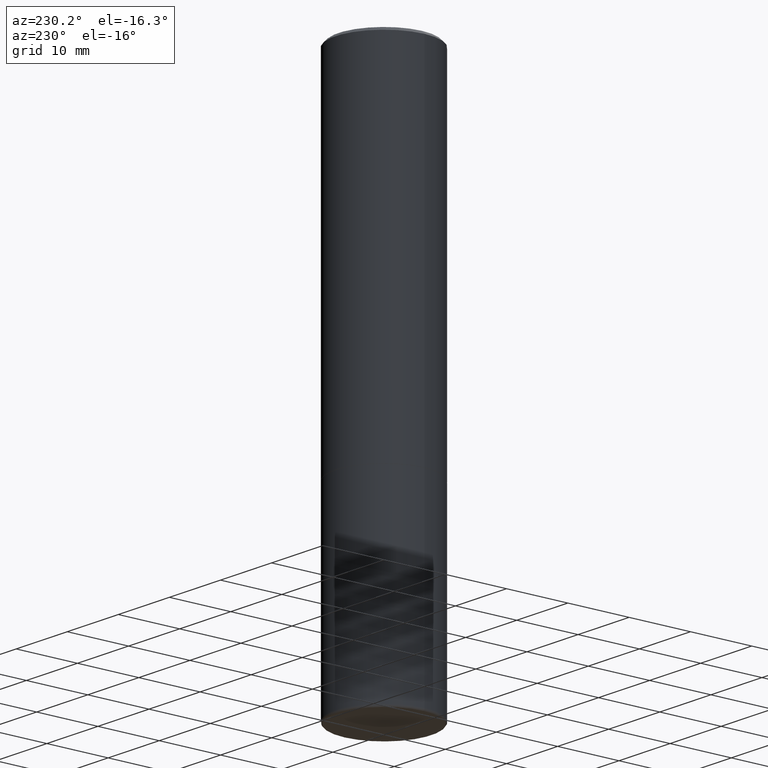
[diagram: clean part render]
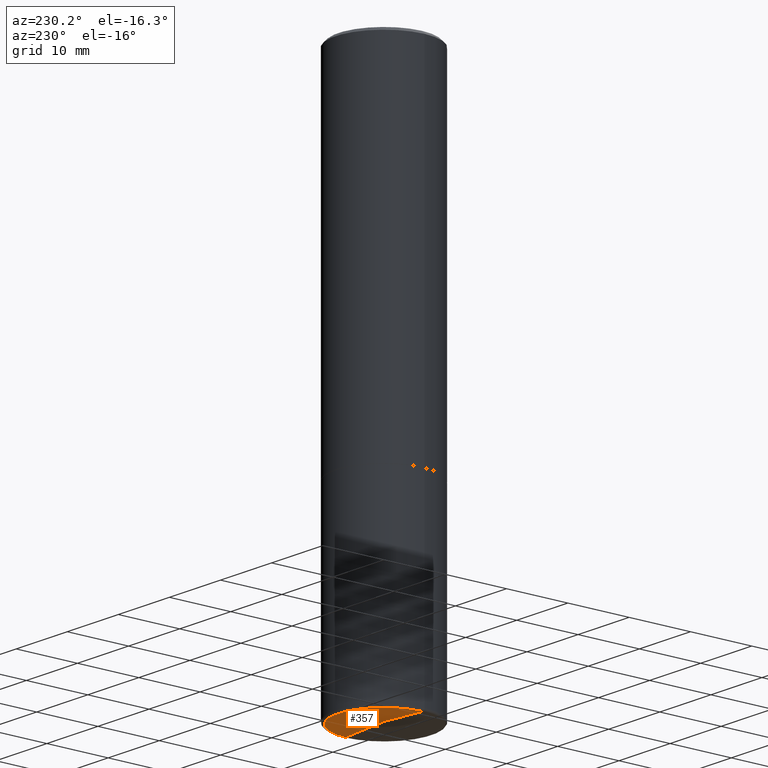
[diagram: same view with one face highlighted and labeled with its STEP entity id]
A machine part, auxiliary view. The second image highlights one B-rep face of the part: STEP entity #357.
In plain terms, the highlighted conical surface has half-angle 87 deg.
Its self-contained STEP definition (entity closure, byte-faithful):
#14 = AXIS2_PLACEMENT_3D ( 'NONE', #185, #331, #193 ) ;
#65 = CIRCLE ( 'NONE', #14, 0.2967149606563558861 ) ;
#85 = EDGE_LOOP ( 'NONE', ( #358, #323, #295 ) ) ;
#102 = EDGE_CURVE ( 'NONE', #210, #218, #223, .T. ) ;
#113 = AXIS2_PLACEMENT_3D ( 'NONE', #257, #377, #379 ) ;
#149 = CARTESIAN_POINT ( 'NONE',  ( 8.518465690765155971E-29, -1.216968316402480975E-14, -3.484449827831947566 ) ) ;
#173 = EDGE_CURVE ( 'NONE', #419, #218, #65, .T. ) ;
#179 = LINE ( 'NONE', #220, #180 ) ;
#180 = VECTOR ( 'NONE', #365, 39.37007874015748854 ) ;
#182 = CARTESIAN_POINT ( 'NONE',  ( -0.2967149606563558861, -1.002966813900966153E-14, -3.500000000000000000 ) ) ;
#184 = DIRECTION ( 'NONE',  ( -0.9986295347545742773, 6.790662755453670044E-15, -0.05233595624293597981 ) ) ;
#185 = CARTESIAN_POINT ( 'NONE',  ( 8.559140821647976968E-29, -1.222018468595100934E-14, -3.500000000000000000 ) ) ;
#193 = DIRECTION ( 'NONE',  ( 1.000000000000000000, -6.982962677686265922E-15, 0.000000000000000000 ) ) ;
#210 = VERTEX_POINT ( 'NONE', #149 ) ;
#218 = VERTEX_POINT ( 'NONE', #182 ) ;
#220 = CARTESIAN_POINT ( 'NONE',  ( 3.791614014439913995E-18, -1.216589155001045545E-14, -3.484449827831947566 ) ) ;
#223 = LINE ( 'NONE', #393, #428 ) ;
#239 = EDGE_CURVE ( 'NONE', #210, #419, #179, .T. ) ;
#257 = CARTESIAN_POINT ( 'NONE',  ( 1.047994128167879265E-27, -1.496257867800555549E-13, -42.85452856798943344 ) ) ;
#295 = ORIENTED_EDGE ( 'NONE', *, *, #173, .F. ) ;
#310 = CONICAL_SURFACE ( 'NONE', #113, 751.2258538476803551, 1.518436449235074592 ) ;
#323 = ORIENTED_EDGE ( 'NONE', *, *, #102, .T. ) ;
#331 = DIRECTION ( 'NONE',  ( -2.445468806185136597E-29, 3.491481338843145583E-15, 1.000000000000000000 ) ) ;
#357 = ADVANCED_FACE ( 'NONE', ( #403 ), #310, .F. ) ;
#358 = ORIENTED_EDGE ( 'NONE', *, *, #239, .F. ) ;
#365 = DIRECTION ( 'NONE',  ( 0.9986295347545742773, -7.033825938271996334E-15, -0.05233595624293597981 ) ) ;
#377 = DIRECTION ( 'NONE',  ( 2.445468806185136597E-29, -3.491481338843145583E-15, -1.000000000000000000 ) ) ;
#379 = DIRECTION ( 'NONE',  ( -1.000000000000000000, 6.982962677686266711E-15, 0.000000000000000000 ) ) ;
#393 = CARTESIAN_POINT ( 'NONE',  ( -3.791614014269492307E-18, -1.216589155001045545E-14, -3.484449827831947566 ) ) ;
#403 = FACE_OUTER_BOUND ( 'NONE', #85, .T. ) ;
#419 = VERTEX_POINT ( 'NONE', #433 ) ;
#428 = VECTOR ( 'NONE', #184, 39.37007874015748854 ) ;
#433 = CARTESIAN_POINT ( 'NONE',  ( 0.2967149606563558861, -1.429213418212549008E-14, -3.500000000000000000 ) ) ;